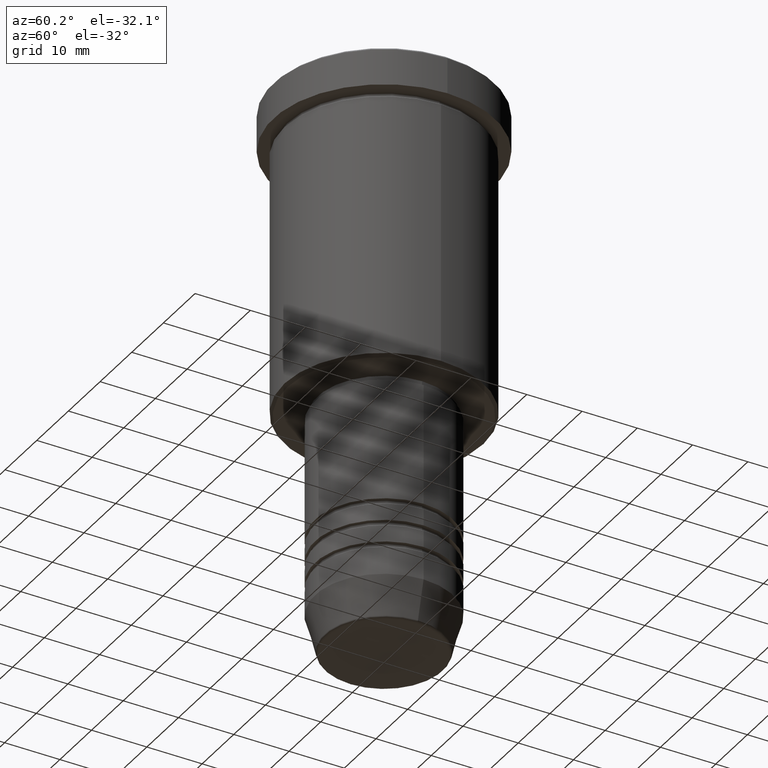
[diagram: clean part render]
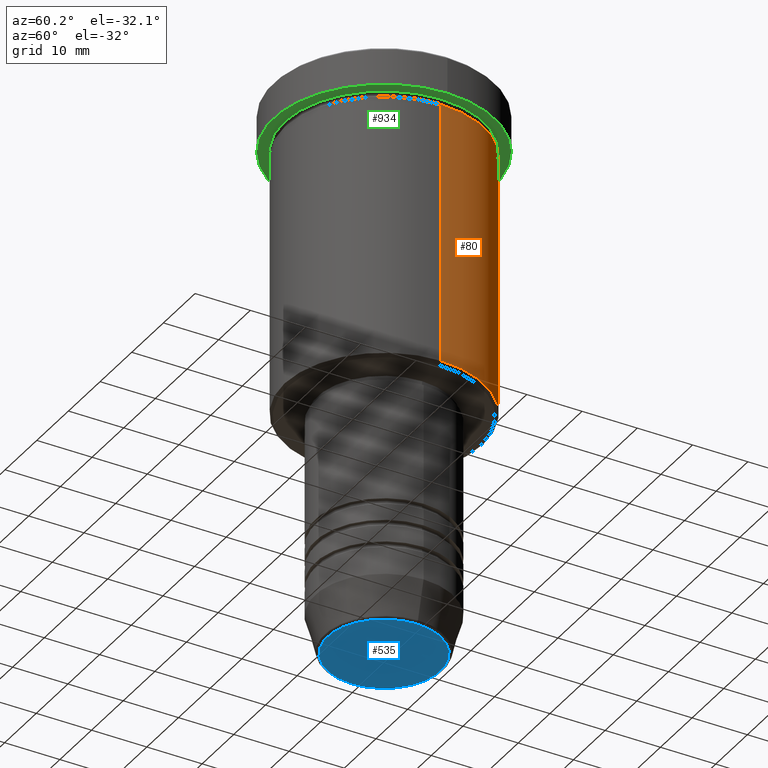
[diagram: same view with three faces highlighted in distinct colors, each labeled with its STEP entity id]
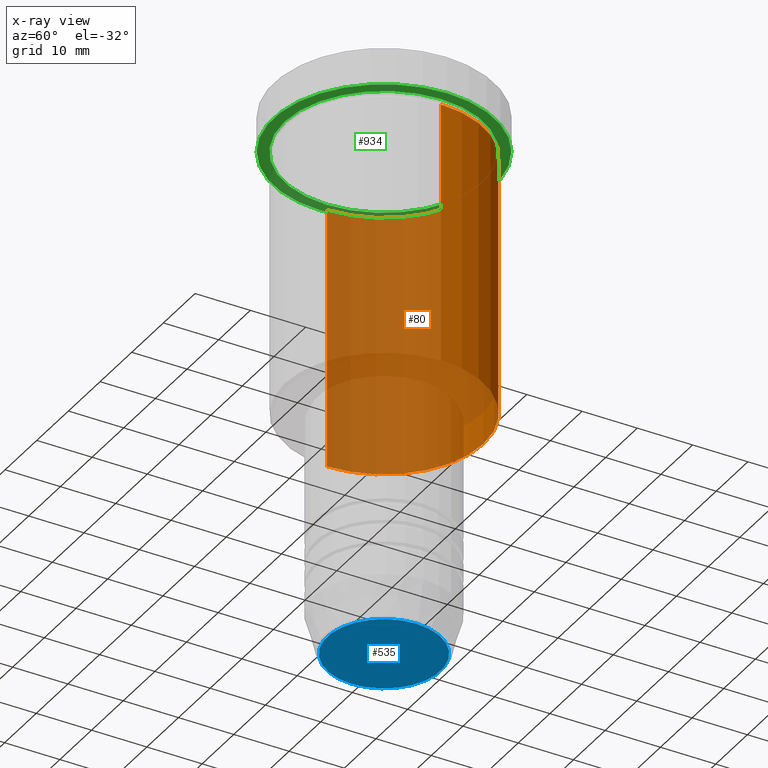
[diagram: x-ray of the same camera — body ghosted, the three highlighted faces saturated]
A machine part, auxiliary view with three faces highlighted in distinct colors.
The next image is the same camera in x-ray (body ghosted, the three faces saturated) — at least one of them is partly hidden behind the body in this view.
Their STEP definitions:

[orange] entity #80 — the highlighted cylindrical surface (partial cylindrical patch) has radius 18 mm, axis along (-0, -0, 1).
#22 = CARTESIAN_POINT ( 'NONE',  ( 18.00000000000000000, 0.000000000000000000, -55.49999999999998579 ) ) ;
#80 = ADVANCED_FACE ( 'NONE', ( #267 ), #545, .T. ) ;
#91 = DIRECTION ( 'NONE',  ( -0.000000000000000000, -0.000000000000000000, 1.000000000000000000 ) ) ;
#120 = CARTESIAN_POINT ( 'NONE',  ( 18.00000000000000000, 0.000000000000000000, 0.000000000000000000 ) ) ;
#137 = DIRECTION ( 'NONE',  ( -0.000000000000000000, -0.000000000000000000, 1.000000000000000000 ) ) ;
#139 = CARTESIAN_POINT ( 'NONE',  ( 18.00000000000000000, 0.000000000000000000, -7.999999999999996447 ) ) ;
#194 = CARTESIAN_POINT ( 'NONE',  ( -18.00000000000000000, 2.204364238465235428E-15, -7.999999999999996447 ) ) ;
#267 = FACE_OUTER_BOUND ( 'NONE', #536, .T. ) ;
#281 = VERTEX_POINT ( 'NONE', #931 ) ;
#314 = AXIS2_PLACEMENT_3D ( 'NONE', #797, #894, #903 ) ;
#343 = DIRECTION ( 'NONE',  ( -1.000000000000000000, 0.000000000000000000, 0.000000000000000000 ) ) ;
#364 = CARTESIAN_POINT ( 'NONE',  ( 0.000000000000000000, 0.000000000000000000, -55.49999999999998579 ) ) ;
#381 = EDGE_CURVE ( 'NONE', #1067, #838, #488, .T. ) ;
#410 = CARTESIAN_POINT ( 'NONE',  ( -18.00000000000000000, 2.204364238465235428E-15, 0.000000000000000000 ) ) ;
#417 = ORIENTED_EDGE ( 'NONE', *, *, #666, .F. ) ;
#443 = AXIS2_PLACEMENT_3D ( 'NONE', #906, #91, #804 ) ;
#463 = CIRCLE ( 'NONE', #314, 18.00000000000000000 ) ;
#488 = LINE ( 'NONE', #120, #729 ) ;
#490 = LINE ( 'NONE', #410, #529 ) ;
#529 = VECTOR ( 'NONE', #1147, 1000.000000000000000 ) ;
#536 = EDGE_LOOP ( 'NONE', ( #761, #776, #417, #959 ) ) ;
#545 = CYLINDRICAL_SURFACE ( 'NONE', #443, 18.00000000000000000 ) ;
#666 = EDGE_CURVE ( 'NONE', #838, #918, #463, .T. ) ;
#677 = EDGE_CURVE ( 'NONE', #1067, #281, #1013, .T. ) ;
#722 = DIRECTION ( 'NONE',  ( -0.000000000000000000, -0.000000000000000000, 1.000000000000000000 ) ) ;
#729 = VECTOR ( 'NONE', #137, 1000.000000000000000 ) ;
#761 = ORIENTED_EDGE ( 'NONE', *, *, #677, .T. ) ;
#776 = ORIENTED_EDGE ( 'NONE', *, *, #869, .T. ) ;
#797 = CARTESIAN_POINT ( 'NONE',  ( 0.000000000000000000, 0.000000000000000000, -7.999999999999996447 ) ) ;
#804 = DIRECTION ( 'NONE',  ( 1.000000000000000000, 0.000000000000000000, 0.000000000000000000 ) ) ;
#838 = VERTEX_POINT ( 'NONE', #139 ) ;
#869 = EDGE_CURVE ( 'NONE', #281, #918, #490, .T. ) ;
#894 = DIRECTION ( 'NONE',  ( -0.000000000000000000, -0.000000000000000000, 1.000000000000000000 ) ) ;
#903 = DIRECTION ( 'NONE',  ( 1.000000000000000000, 0.000000000000000000, 0.000000000000000000 ) ) ;
#906 = CARTESIAN_POINT ( 'NONE',  ( 0.000000000000000000, 0.000000000000000000, 0.000000000000000000 ) ) ;
#918 = VERTEX_POINT ( 'NONE', #194 ) ;
#931 = CARTESIAN_POINT ( 'NONE',  ( -18.00000000000000000, 2.204364238465235428E-15, -55.49999999999998579 ) ) ;
#959 = ORIENTED_EDGE ( 'NONE', *, *, #381, .F. ) ;
#1013 = CIRCLE ( 'NONE', #1094, 18.00000000000000000 ) ;
#1067 = VERTEX_POINT ( 'NONE', #22 ) ;
#1094 = AXIS2_PLACEMENT_3D ( 'NONE', #364, #722, #343 ) ;
#1147 = DIRECTION ( 'NONE',  ( -0.000000000000000000, -0.000000000000000000, 1.000000000000000000 ) ) ;

[blue] entity #535 — the highlighted planar face has unit normal (0, -0, 1).
#10 = DIRECTION ( 'NONE',  ( 0.000000000000000000, 0.000000000000000000, -1.000000000000000000 ) ) ;
#15 = DIRECTION ( 'NONE',  ( 1.000000000000000000, 0.000000000000000000, 0.000000000000000000 ) ) ;
#34 = EDGE_LOOP ( 'NONE', ( #972, #259 ) ) ;
#72 = CARTESIAN_POINT ( 'NONE',  ( 0.000000000000000000, 0.000000000000000000, -100.0000000000000000 ) ) ;
#158 = PLANE ( 'NONE',  #349 ) ;
#186 = DIRECTION ( 'NONE',  ( 1.000000000000000000, 0.000000000000000000, 0.000000000000000000 ) ) ;
#241 = DIRECTION ( 'NONE',  ( 1.000000000000000000, 0.000000000000000000, 0.000000000000000000 ) ) ;
#259 = ORIENTED_EDGE ( 'NONE', *, *, #913, .T. ) ;
#272 = DIRECTION ( 'NONE',  ( 0.000000000000000000, -0.000000000000000000, 1.000000000000000000 ) ) ;
#324 = CARTESIAN_POINT ( 'NONE',  ( -10.24069215899265473, 1.283696036640841981E-15, -100.0000000000000000 ) ) ;
#330 = VERTEX_POINT ( 'NONE', #1131 ) ;
#340 = CARTESIAN_POINT ( 'NONE',  ( 0.000000000000000000, 0.000000000000000000, -100.0000000000000000 ) ) ;
#349 = AXIS2_PLACEMENT_3D ( 'NONE', #72, #272, #186 ) ;
#505 = VERTEX_POINT ( 'NONE', #324 ) ;
#535 = ADVANCED_FACE ( 'NONE', ( #604 ), #158, .F. ) ;
#540 = CARTESIAN_POINT ( 'NONE',  ( 0.000000000000000000, 0.000000000000000000, -100.0000000000000000 ) ) ;
#594 = CIRCLE ( 'NONE', #1081, 10.24069215899265473 ) ;
#604 = FACE_OUTER_BOUND ( 'NONE', #34, .T. ) ;
#621 = DIRECTION ( 'NONE',  ( 0.000000000000000000, 0.000000000000000000, -1.000000000000000000 ) ) ;
#821 = AXIS2_PLACEMENT_3D ( 'NONE', #540, #10, #15 ) ;
#913 = EDGE_CURVE ( 'NONE', #505, #330, #960, .T. ) ;
#960 = CIRCLE ( 'NONE', #821, 10.24069215899265473 ) ;
#972 = ORIENTED_EDGE ( 'NONE', *, *, #1108, .T. ) ;
#1081 = AXIS2_PLACEMENT_3D ( 'NONE', #340, #621, #241 ) ;
#1108 = EDGE_CURVE ( 'NONE', #330, #505, #594, .T. ) ;
#1131 = CARTESIAN_POINT ( 'NONE',  ( 10.24069215899265473, 0.000000000000000000, -100.0000000000000000 ) ) ;

[green] entity #934 — the highlighted planar face has unit normal (0, 0, -1).
#19 = FACE_BOUND ( 'NONE', #946, .T. ) ;
#68 = CARTESIAN_POINT ( 'NONE',  ( 0.000000000000000000, 0.000000000000000000, -6.999999999999995559 ) ) ;
#85 = CIRCLE ( 'NONE', #975, 20.00000000000000000 ) ;
#111 = DIRECTION ( 'NONE',  ( 0.000000000000000000, 0.000000000000000000, -1.000000000000000000 ) ) ;
#116 = DIRECTION ( 'NONE',  ( -1.000000000000000000, 0.000000000000000000, -0.000000000000000000 ) ) ;
#154 = VERTEX_POINT ( 'NONE', #514 ) ;
#192 = FACE_OUTER_BOUND ( 'NONE', #779, .T. ) ;
#202 = DIRECTION ( 'NONE',  ( -0.000000000000000000, -0.000000000000000000, 1.000000000000000000 ) ) ;
#221 = AXIS2_PLACEMENT_3D ( 'NONE', #1008, #111, #116 ) ;
#239 = CIRCLE ( 'NONE', #674, 20.00000000000000000 ) ;
#331 = DIRECTION ( 'NONE',  ( -0.000000000000000000, -0.000000000000000000, 1.000000000000000000 ) ) ;
#348 = CARTESIAN_POINT ( 'NONE',  ( 0.000000000000000000, 0.000000000000000000, -6.999999999999995559 ) ) ;
#403 = ORIENTED_EDGE ( 'NONE', *, *, #890, .F. ) ;
#411 = AXIS2_PLACEMENT_3D ( 'NONE', #747, #202, #1121 ) ;
#441 = EDGE_CURVE ( 'NONE', #875, #1076, #239, .T. ) ;
#458 = PLANE ( 'NONE',  #221 ) ;
#514 = CARTESIAN_POINT ( 'NONE',  ( 18.00000000000000000, 2.204364238465235428E-15, -6.999999999999995559 ) ) ;
#558 = ORIENTED_EDGE ( 'NONE', *, *, #441, .F. ) ;
#588 = CARTESIAN_POINT ( 'NONE',  ( 20.00000000000000000, 0.000000000000000000, -6.999999999999995559 ) ) ;
#598 = ORIENTED_EDGE ( 'NONE', *, *, #969, .T. ) ;
#622 = DIRECTION ( 'NONE',  ( 1.000000000000000000, 0.000000000000000000, 0.000000000000000000 ) ) ;
#665 = CARTESIAN_POINT ( 'NONE',  ( -18.00000000000000000, 0.000000000000000000, -6.999999999999995559 ) ) ;
#674 = AXIS2_PLACEMENT_3D ( 'NONE', #1092, #914, #622 ) ;
#747 = CARTESIAN_POINT ( 'NONE',  ( 0.000000000000000000, 0.000000000000000000, -6.999999999999995559 ) ) ;
#754 = VERTEX_POINT ( 'NONE', #665 ) ;
#763 = EDGE_CURVE ( 'NONE', #154, #754, #884, .T. ) ;
#779 = EDGE_LOOP ( 'NONE', ( #403, #558 ) ) ;
#784 = ORIENTED_EDGE ( 'NONE', *, *, #763, .T. ) ;
#875 = VERTEX_POINT ( 'NONE', #1064 ) ;
#884 = CIRCLE ( 'NONE', #1080, 18.00000000000000000 ) ;
#890 = EDGE_CURVE ( 'NONE', #1076, #875, #85, .T. ) ;
#891 = DIRECTION ( 'NONE',  ( -0.000000000000000000, -0.000000000000000000, 1.000000000000000000 ) ) ;
#914 = DIRECTION ( 'NONE',  ( -0.000000000000000000, -0.000000000000000000, 1.000000000000000000 ) ) ;
#934 = ADVANCED_FACE ( 'NONE', ( #19, #192 ), #458, .T. ) ;
#946 = EDGE_LOOP ( 'NONE', ( #598, #784 ) ) ;
#969 = EDGE_CURVE ( 'NONE', #754, #154, #1062, .T. ) ;
#971 = DIRECTION ( 'NONE',  ( 1.000000000000000000, 0.000000000000000000, 0.000000000000000000 ) ) ;
#975 = AXIS2_PLACEMENT_3D ( 'NONE', #348, #891, #971 ) ;
#1008 = CARTESIAN_POINT ( 'NONE',  ( 0.000000000000000000, 20.00000000000000000, -6.999999999999995559 ) ) ;
#1050 = DIRECTION ( 'NONE',  ( -1.000000000000000000, 0.000000000000000000, 0.000000000000000000 ) ) ;
#1062 = CIRCLE ( 'NONE', #411, 18.00000000000000000 ) ;
#1064 = CARTESIAN_POINT ( 'NONE',  ( -20.00000000000000000, 2.449293598294706513E-15, -6.999999999999995559 ) ) ;
#1076 = VERTEX_POINT ( 'NONE', #588 ) ;
#1080 = AXIS2_PLACEMENT_3D ( 'NONE', #68, #331, #1050 ) ;
#1092 = CARTESIAN_POINT ( 'NONE',  ( 0.000000000000000000, 0.000000000000000000, -6.999999999999995559 ) ) ;
#1121 = DIRECTION ( 'NONE',  ( -1.000000000000000000, 0.000000000000000000, 0.000000000000000000 ) ) ;